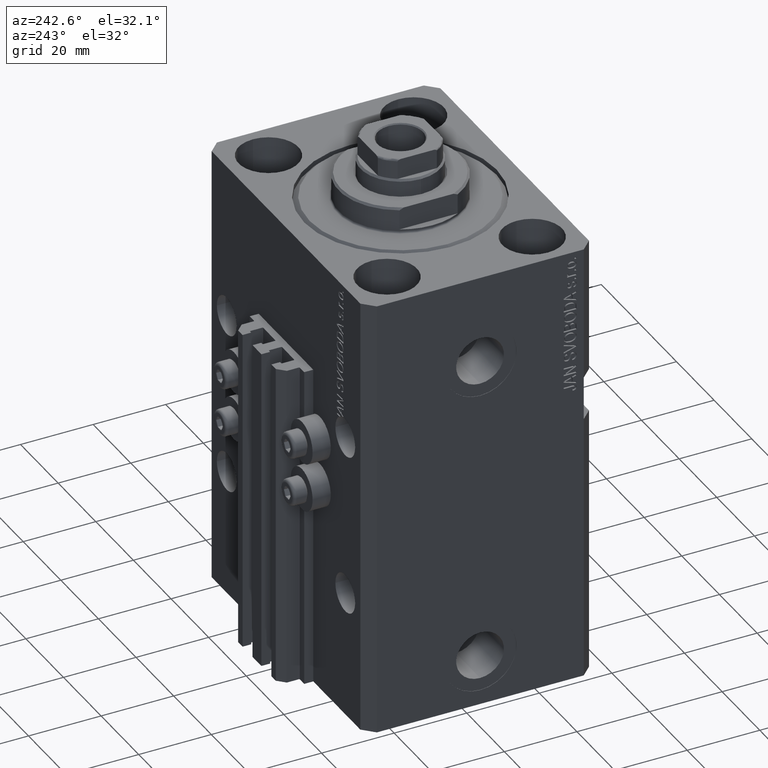
[diagram: clean part render]
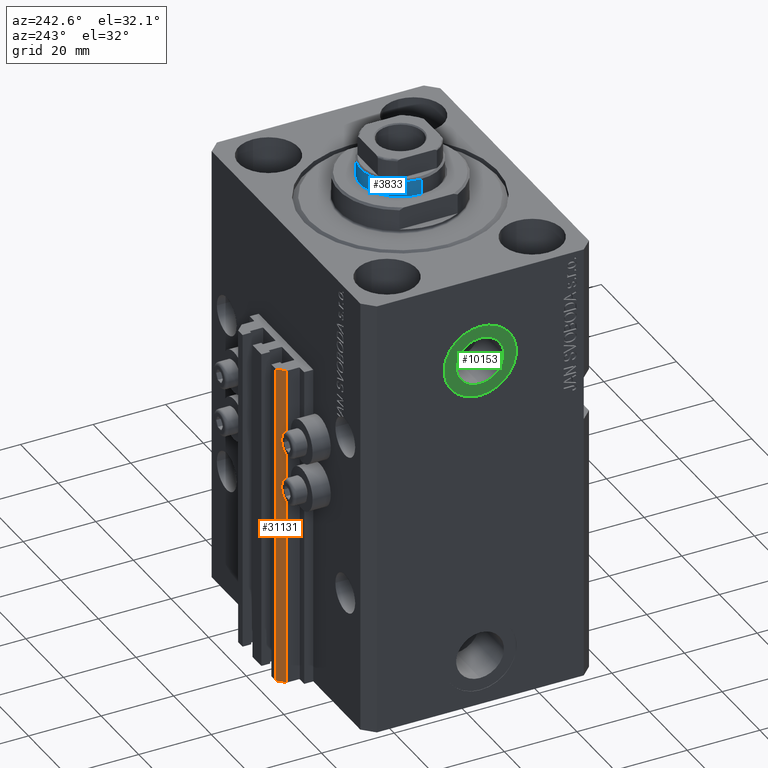
[diagram: same view with three faces highlighted in distinct colors, each labeled with its STEP entity id]
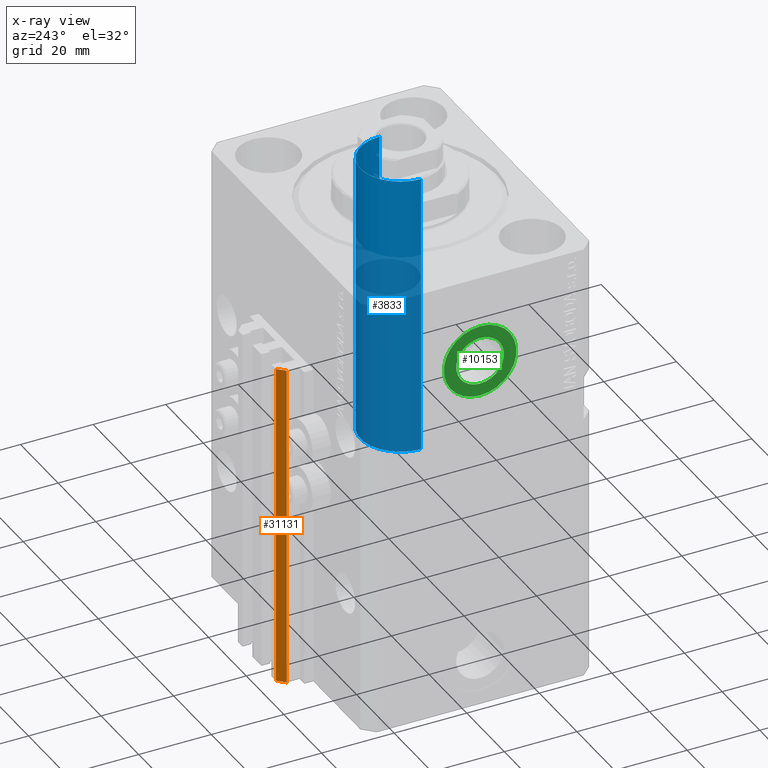
[diagram: x-ray of the same camera — body ghosted, the three highlighted faces saturated]
A machine part, auxiliary view with three faces highlighted in distinct colors.
The next image is the same camera in x-ray (body ghosted, the three faces saturated) — at least one of them is partly hidden behind the body in this view.
Their STEP definitions:

[orange] entity #31131 — the highlighted planar face has unit normal (-0.7071, 0.7071, 0).
#315 = DIRECTION ( 'NONE',  ( 0.000000000000000000, 0.000000000000000000, 1.000000000000000000 ) ) ;
#743 = EDGE_CURVE ( 'NONE', #15477, #12854, #35015, .T. ) ;
#1623 = EDGE_CURVE ( 'NONE', #15477, #9213, #9825, .T. ) ;
#5796 = ORIENTED_EDGE ( 'NONE', *, *, #1623, .T. ) ;
#7956 = DIRECTION ( 'NONE',  ( 0.000000000000000000, 0.000000000000000000, 1.000000000000000000 ) ) ;
#8650 = VECTOR ( 'NONE', #7956, 1000.000000000000000 ) ;
#9213 = VERTEX_POINT ( 'NONE', #33873 ) ;
#9825 = LINE ( 'NONE', #17192, #19666 ) ;
#10309 = PLANE ( 'NONE',  #20737 ) ;
#12395 = CARTESIAN_POINT ( 'NONE',  ( -10.00000000000000000, 39.49999999999999289, -123.0000000000000000 ) ) ;
#12854 = VERTEX_POINT ( 'NONE', #16567 ) ;
#15477 = VERTEX_POINT ( 'NONE', #43044 ) ;
#16567 = CARTESIAN_POINT ( 'NONE',  ( -10.00000000000000000, 39.49999999999999289, -33.00000000000000000 ) ) ;
#17192 = CARTESIAN_POINT ( 'NONE',  ( -10.00000000000000000, 39.49999999999999289, -123.0000000000000000 ) ) ;
#18128 = EDGE_CURVE ( 'NONE', #9213, #31845, #19003, .T. ) ;
#19003 = LINE ( 'NONE', #40669, #34497 ) ;
#19141 = CARTESIAN_POINT ( 'NONE',  ( -10.00000000000000000, 39.49999999999999289, -33.00000000000000000 ) ) ;
#19666 = VECTOR ( 'NONE', #20889, 999.9999999999998863 ) ;
#20275 = ORIENTED_EDGE ( 'NONE', *, *, #743, .F. ) ;
#20737 = AXIS2_PLACEMENT_3D ( 'NONE', #44718, #32438, #25295 ) ;
#20889 = DIRECTION ( 'NONE',  ( -0.7071067811865472397, -0.7071067811865479058, 0.000000000000000000 ) ) ;
#22931 = VECTOR ( 'NONE', #27001, 999.9999999999998863 ) ;
#25295 = DIRECTION ( 'NONE',  ( -0.7071067811865472397, -0.7071067811865479058, 0.000000000000000000 ) ) ;
#27001 = DIRECTION ( 'NONE',  ( -0.7071067811865472397, -0.7071067811865479058, 0.000000000000000000 ) ) ;
#27222 = EDGE_CURVE ( 'NONE', #12854, #31845, #34391, .T. ) ;
#29741 = FACE_OUTER_BOUND ( 'NONE', #44534, .T. ) ;
#31131 = ADVANCED_FACE ( 'NONE', ( #29741 ), #10309, .T. ) ;
#31845 = VERTEX_POINT ( 'NONE', #34133 ) ;
#32438 = DIRECTION ( 'NONE',  ( -0.7071067811865479058, 0.7071067811865472397, 0.000000000000000000 ) ) ;
#33873 = CARTESIAN_POINT ( 'NONE',  ( -12.00000000000000000, 37.49999999999999289, -123.0000000000000000 ) ) ;
#34133 = CARTESIAN_POINT ( 'NONE',  ( -12.00000000000000000, 37.49999999999999289, -33.00000000000000000 ) ) ;
#34391 = LINE ( 'NONE', #19141, #22931 ) ;
#34497 = VECTOR ( 'NONE', #315, 1000.000000000000000 ) ;
#35015 = LINE ( 'NONE', #12395, #8650 ) ;
#36239 = ORIENTED_EDGE ( 'NONE', *, *, #27222, .F. ) ;
#37928 = ORIENTED_EDGE ( 'NONE', *, *, #18128, .T. ) ;
#40669 = CARTESIAN_POINT ( 'NONE',  ( -12.00000000000000000, 37.49999999999999289, -123.0000000000000000 ) ) ;
#43044 = CARTESIAN_POINT ( 'NONE',  ( -10.00000000000000000, 39.49999999999999289, -123.0000000000000000 ) ) ;
#44534 = EDGE_LOOP ( 'NONE', ( #36239, #20275, #5796, #37928 ) ) ;
#44718 = CARTESIAN_POINT ( 'NONE',  ( -10.00000000000000000, 39.49999999999999289, -123.0000000000000000 ) ) ;

[blue] entity #3833 — the highlighted cylindrical surface (partial cylindrical patch) has radius 11 mm, axis along (-0, -0, -1).
#1445 = CARTESIAN_POINT ( 'NONE',  ( 11.00000000000000000, 1.347111479062088405E-15, 122.6000000000000085 ) ) ;
#2853 = EDGE_CURVE ( 'NONE', #33389, #5083, #45632, .T. ) ;
#3833 = ADVANCED_FACE ( 'NONE', ( #48005 ), #25617, .T. ) ;
#4444 = DIRECTION ( 'NONE',  ( 1.000000000000000000, 0.000000000000000000, 0.000000000000000000 ) ) ;
#4649 = ORIENTED_EDGE ( 'NONE', *, *, #26147, .T. ) ;
#5083 = VERTEX_POINT ( 'NONE', #15688 ) ;
#5812 = LINE ( 'NONE', #10235, #30438 ) ;
#6287 = DIRECTION ( 'NONE',  ( -0.000000000000000000, -0.000000000000000000, -1.000000000000000000 ) ) ;
#7198 = ORIENTED_EDGE ( 'NONE', *, *, #22763, .F. ) ;
#9346 = VERTEX_POINT ( 'NONE', #29422 ) ;
#9652 = CARTESIAN_POINT ( 'NONE',  ( 11.00000000000000000, 1.347111479062088405E-15, 44.60000000000000142 ) ) ;
#10235 = CARTESIAN_POINT ( 'NONE',  ( 11.00000000000000000, 1.347111479062088405E-15, 123.0999999999999943 ) ) ;
#11904 = LINE ( 'NONE', #26886, #44879 ) ;
#14567 = DIRECTION ( 'NONE',  ( -1.000000000000000000, 0.000000000000000000, 0.000000000000000000 ) ) ;
#15688 = CARTESIAN_POINT ( 'NONE',  ( -11.00000000000000000, 0.000000000000000000, 44.60000000000000142 ) ) ;
#16805 = EDGE_CURVE ( 'NONE', #39458, #33389, #5812, .T. ) ;
#20671 = CIRCLE ( 'NONE', #33997, 11.00000000000000000 ) ;
#21168 = EDGE_LOOP ( 'NONE', ( #4649, #40302, #21181, #7198 ) ) ;
#21181 = ORIENTED_EDGE ( 'NONE', *, *, #2853, .T. ) ;
#22763 = EDGE_CURVE ( 'NONE', #9346, #5083, #11904, .T. ) ;
#23308 = DIRECTION ( 'NONE',  ( 0.000000000000000000, 0.000000000000000000, -1.000000000000000000 ) ) ;
#25617 = CYLINDRICAL_SURFACE ( 'NONE', #39388, 11.00000000000000000 ) ;
#26147 = EDGE_CURVE ( 'NONE', #9346, #39458, #20671, .T. ) ;
#26510 = DIRECTION ( 'NONE',  ( 1.000000000000000000, 0.000000000000000000, 0.000000000000000000 ) ) ;
#26805 = DIRECTION ( 'NONE',  ( 0.000000000000000000, 0.000000000000000000, 1.000000000000000000 ) ) ;
#26886 = CARTESIAN_POINT ( 'NONE',  ( -11.00000000000000000, 0.000000000000000000, 123.0999999999999943 ) ) ;
#29150 = AXIS2_PLACEMENT_3D ( 'NONE', #30041, #26805, #4444 ) ;
#29422 = CARTESIAN_POINT ( 'NONE',  ( -11.00000000000000000, 0.000000000000000000, 122.6000000000000085 ) ) ;
#30041 = CARTESIAN_POINT ( 'NONE',  ( 0.000000000000000000, 0.000000000000000000, 44.60000000000000142 ) ) ;
#30438 = VECTOR ( 'NONE', #6287, 1000.000000000000000 ) ;
#33389 = VERTEX_POINT ( 'NONE', #9652 ) ;
#33490 = DIRECTION ( 'NONE',  ( -0.000000000000000000, -0.000000000000000000, -1.000000000000000000 ) ) ;
#33997 = AXIS2_PLACEMENT_3D ( 'NONE', #34618, #23308, #26510 ) ;
#34618 = CARTESIAN_POINT ( 'NONE',  ( 0.000000000000000000, 0.000000000000000000, 122.6000000000000085 ) ) ;
#36206 = CARTESIAN_POINT ( 'NONE',  ( 0.000000000000000000, 0.000000000000000000, 123.0999999999999943 ) ) ;
#39388 = AXIS2_PLACEMENT_3D ( 'NONE', #36206, #33490, #14567 ) ;
#39458 = VERTEX_POINT ( 'NONE', #1445 ) ;
#40302 = ORIENTED_EDGE ( 'NONE', *, *, #16805, .T. ) ;
#41415 = DIRECTION ( 'NONE',  ( -0.000000000000000000, -0.000000000000000000, -1.000000000000000000 ) ) ;
#44879 = VECTOR ( 'NONE', #41415, 1000.000000000000000 ) ;
#45632 = CIRCLE ( 'NONE', #29150, 11.00000000000000000 ) ;
#48005 = FACE_OUTER_BOUND ( 'NONE', #21168, .T. ) ;

[green] entity #10153 — the highlighted planar face has unit normal (-1, 0, 0).
#2700 = EDGE_CURVE ( 'NONE', #7203, #25756, #26779, .T. ) ;
#3959 = EDGE_CURVE ( 'NONE', #36901, #44232, #38577, .T. ) ;
#5821 = FACE_BOUND ( 'NONE', #45784, .T. ) ;
#6428 = DIRECTION ( 'NONE',  ( -1.000000000000000000, 0.000000000000000000, 0.000000000000000000 ) ) ;
#6507 = CARTESIAN_POINT ( 'NONE',  ( -42.39999999999999858, -3.469446951953614189E-15, -24.00000000000000000 ) ) ;
#6567 = EDGE_CURVE ( 'NONE', #44232, #36901, #13596, .T. ) ;
#6681 = CARTESIAN_POINT ( 'NONE',  ( -42.39999999999999858, -3.469446951953614189E-15, -24.00000000000000000 ) ) ;
#7160 = DIRECTION ( 'NONE',  ( 0.000000000000000000, 0.000000000000000000, 1.000000000000000000 ) ) ;
#7203 = VERTEX_POINT ( 'NONE', #43535 ) ;
#8216 = ORIENTED_EDGE ( 'NONE', *, *, #2700, .F. ) ;
#9036 = FACE_OUTER_BOUND ( 'NONE', #36860, .T. ) ;
#9078 = CIRCLE ( 'NONE', #36558, 6.579999999999999183 ) ;
#10153 = ADVANCED_FACE ( 'NONE', ( #5821, #9036 ), #35338, .T. ) ;
#11608 = DIRECTION ( 'NONE',  ( -1.000000000000000000, 0.000000000000000000, 0.000000000000000000 ) ) ;
#11837 = CARTESIAN_POINT ( 'NONE',  ( -42.39999999999999858, -3.469446951953614189E-15, -24.00000000000000000 ) ) ;
#13409 = DIRECTION ( 'NONE',  ( -1.000000000000000000, 0.000000000000000000, 0.000000000000000000 ) ) ;
#13596 = CIRCLE ( 'NONE', #39493, 10.00000000000000000 ) ;
#15585 = DIRECTION ( 'NONE',  ( -1.000000000000000000, 0.000000000000000000, 0.000000000000000000 ) ) ;
#17137 = CARTESIAN_POINT ( 'NONE',  ( -42.39999999999999858, -3.469446951953614189E-15, -24.00000000000000000 ) ) ;
#20794 = CARTESIAN_POINT ( 'NONE',  ( -42.39999999999999858, -3.469446951953614189E-15, -24.00000000000000000 ) ) ;
#20824 = DIRECTION ( 'NONE',  ( 0.000000000000000000, 0.000000000000000000, 1.000000000000000000 ) ) ;
#21927 = CARTESIAN_POINT ( 'NONE',  ( -42.39999999999999858, -3.469446951953614189E-15, -17.42000000000000171 ) ) ;
#24369 = CARTESIAN_POINT ( 'NONE',  ( -42.39999999999999858, -3.469446951953614189E-15, -14.00000000000000000 ) ) ;
#25756 = VERTEX_POINT ( 'NONE', #21927 ) ;
#26017 = AXIS2_PLACEMENT_3D ( 'NONE', #11837, #11608, #37648 ) ;
#26779 = CIRCLE ( 'NONE', #37769, 6.579999999999999183 ) ;
#28401 = DIRECTION ( 'NONE',  ( 0.000000000000000000, 0.000000000000000000, 1.000000000000000000 ) ) ;
#30098 = AXIS2_PLACEMENT_3D ( 'NONE', #17137, #39258, #20824 ) ;
#35338 = PLANE ( 'NONE',  #30098 ) ;
#36558 = AXIS2_PLACEMENT_3D ( 'NONE', #6507, #15585, #41171 ) ;
#36860 = EDGE_LOOP ( 'NONE', ( #47089, #44906 ) ) ;
#36901 = VERTEX_POINT ( 'NONE', #46294 ) ;
#37648 = DIRECTION ( 'NONE',  ( 0.000000000000000000, 0.000000000000000000, 1.000000000000000000 ) ) ;
#37769 = AXIS2_PLACEMENT_3D ( 'NONE', #6681, #6428, #7160 ) ;
#38577 = CIRCLE ( 'NONE', #26017, 10.00000000000000000 ) ;
#39258 = DIRECTION ( 'NONE',  ( -1.000000000000000000, 0.000000000000000000, 0.000000000000000000 ) ) ;
#39493 = AXIS2_PLACEMENT_3D ( 'NONE', #20794, #13409, #28401 ) ;
#41171 = DIRECTION ( 'NONE',  ( 0.000000000000000000, 0.000000000000000000, 1.000000000000000000 ) ) ;
#43535 = CARTESIAN_POINT ( 'NONE',  ( -42.39999999999999858, -2.663629358114655936E-15, -30.57999999999999829 ) ) ;
#44232 = VERTEX_POINT ( 'NONE', #24369 ) ;
#44906 = ORIENTED_EDGE ( 'NONE', *, *, #3959, .T. ) ;
#45153 = ORIENTED_EDGE ( 'NONE', *, *, #47424, .F. ) ;
#45784 = EDGE_LOOP ( 'NONE', ( #45153, #8216 ) ) ;
#46294 = CARTESIAN_POINT ( 'NONE',  ( -42.39999999999999858, -2.244800152806261524E-15, -34.00000000000000000 ) ) ;
#47089 = ORIENTED_EDGE ( 'NONE', *, *, #6567, .T. ) ;
#47424 = EDGE_CURVE ( 'NONE', #25756, #7203, #9078, .T. ) ;